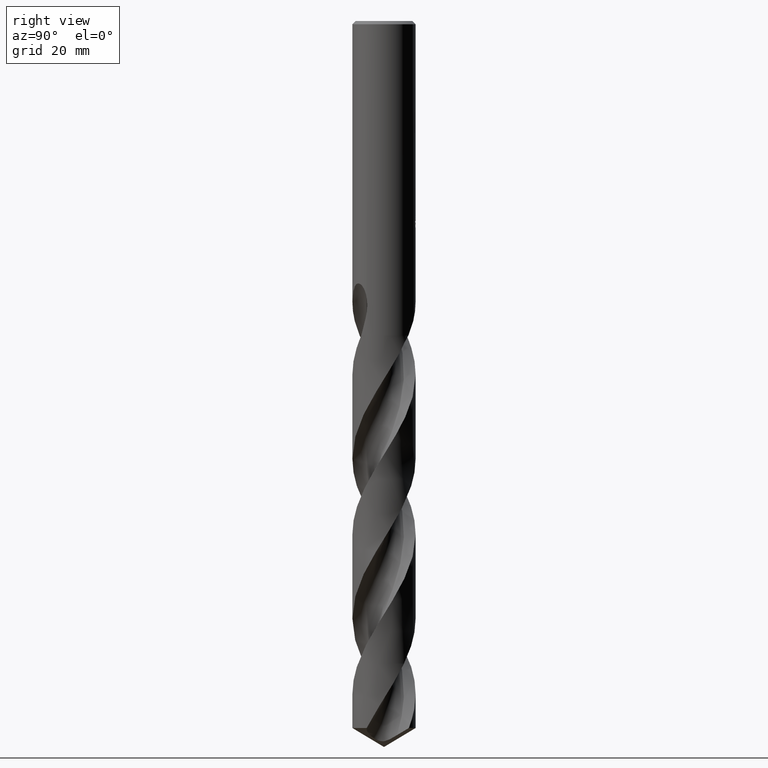
[diagram: clean part render]
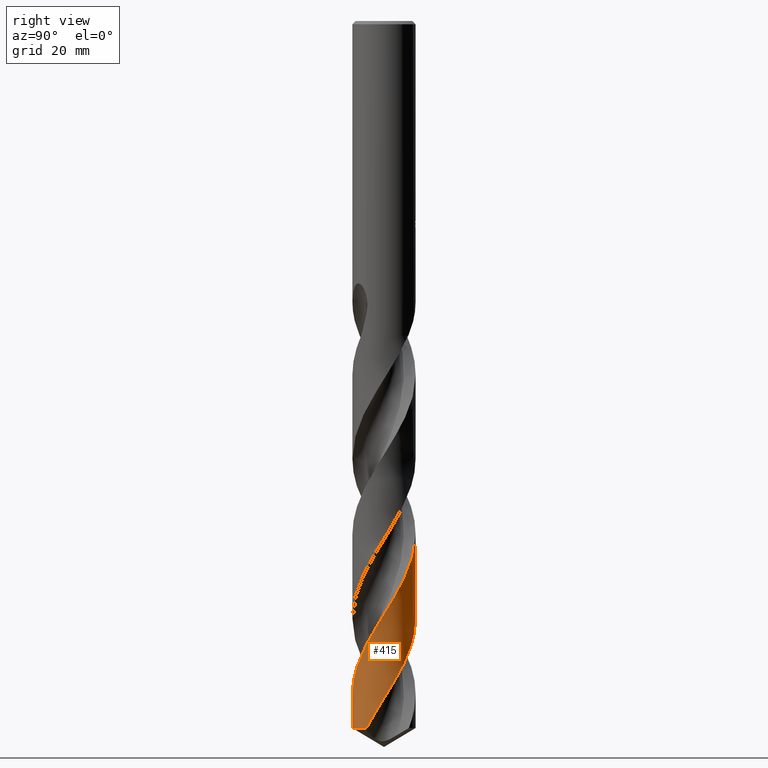
[diagram: same view with one face highlighted and labeled with its STEP entity id]
A machine part, right view. The second image highlights one B-rep face of the part: STEP entity #415.
In plain terms, the highlighted conical surface has half-angle 0 deg.
Its self-contained STEP definition (entity closure, byte-faithful):
#337=VERTEX_POINT('',#821);
#369=VERTEX_POINT('',#858);
#415=ADVANCED_FACE('',(#906),#907,.T.);
#449=EDGE_CURVE('',#337,#715,#943,.T.);
#493=VERTEX_POINT('',#991);
#545=EDGE_CURVE('',#369,#583,#1049,.T.);
#577=EDGE_CURVE('',#493,#583,#1083,.T.);
#583=VERTEX_POINT('',#1090);
#591=EDGE_CURVE('',#493,#337,#1099,.T.);
#647=EDGE_CURVE('',#369,#715,#1157,.T.);
#715=VERTEX_POINT('',#1232);
#821=CARTESIAN_POINT('',(9.48615845429157E-016,-7.75,-173.343330202536));
#858=CARTESIAN_POINT('',(1.99533446718282E-014,7.74995067438511,-125.870715794964));
#906=FACE_OUTER_BOUND('',#3390,.T.);
#907=CONICAL_SURFACE('',#3391,7.74995,1.03903304041214E-006);
#943=LINE('',#3473,#3474);
#991=CARTESIAN_POINT('',(6.47495186175452,-4.25881419974641,-173.343330202536));
#1049=LINE('',#5153,#5154);
#1083=B_SPLINE_CURVE_WITH_KNOTS('',3,(#5401,#5402,#5403,#5404,#5405,#5406,#5407,#5408,#5409,#5410,#5411,#5412,#5413,#5414,#5415,#5416,#5417,#5418,#5419,#5420,#5421,#5422,#5423,#5424,#5425,#5426,#5427,#5428,#5429,#5430,#5431,#5432,#5433,#5434,#5435,#5436,#5437,#5438,#5439,#5440,#5441,#5442,#5443,#5444,#5445,#5446,#5447,#5448,#5449,#5450,#5451,#5452,#5453,#5454,#5455,#5456,#5457,#5458,#5459,#5460,#5461,#5462,#5463,#5464,#5465,#5466,#5467,#5468,#5469,#5470,#5471,#5472,#5473,#5474,#5475,#5476,#5477,#5478,#5479,#5480,#5481,#5482,#5483,#5484,#5485,#5486,#5487,#5488,#5489,#5490,#5491,#5492,#5493,#5494,#5495,#5496,#5497,#5498,#5499,#5500,#5501,#5502,#5503,#5504,#5505,#5506,#5507,#5508,#5509,#5510,#5511,#5512,#5513,#5514,#5515,#5516,#5517,#5518,#5519,#5520,#5521,#5522,#5523,#5524,#5525,#5526,#5527,#5528,#5529,#5530,#5531,#5532,#5533,#5534,#5535,#5536,#5537,#5538,#5539,#5540,#5541,#5542,#5543,#5544,#5545,#5546,#5547,#5548,#5549,#5550,#5551,#5552,#5553,#5554,#5555,#5556),.UNSPECIFIED.,.F.,.F.,(4,2,2,2,2,2,2,2,2,2,2,2,2,2,2,2,2,2,2,2,2,2,2,2,2,2,2,2,2,2,2,2,2,2,2,2,2,2,2,2,2,2,2,2,2,2,2,2,2,2,2,2,2,2,2,2,2,2,2,2,2,2,2,2,2,2,2,2,2,2,2,2,2,2,2,2,2,4),(0.0,1.1501617486404,2.80915369994849,5.50388782579616,5.80979353727057,8.12454812891192,10.0139240121026,13.0717488826773,13.2063547403265,15.0405653459117,15.9799942113499,17.3232031560426,18.9228674460314,19.9335697566807,21.0443476955143,22.6654444467392,23.7077031164502,24.8163482533074,26.6677226424723,28.521030300895,30.3734369598208,32.2277344417879,34.0094092255681,34.9484483761568,35.9823404999516,37.8806321065603,40.5757320172256,42.4324495856067,43.3547657631438,45.2069697483667,46.1347979431276,47.0569327265549,48.9084562792272,49.8360162613794,50.757992505388,52.6089120996708,53.5362829279596,54.4582779590352,56.1193811663239,57.2271886989767,58.0683798326138,59.9051265686532,60.8820200651772,62.0041425151771,63.7663042008116,65.8678198132229,67.3684489423732,69.4672859609447,71.3197057606443,73.1722760131225,75.0252663442028,76.8443551673533,78.6978360115068,80.552364229866,82.4066752698263,84.261989306508,86.0722400525576,88.0200663171059,89.8516308801315,90.6575265830955,91.502819070658,93.3092794712841,94.3376741859288,95.4975702163929,97.5017553220233,99.569041881076,102.764845145946,105.13822627666,108.962500433628,110.814207149855,113.639512597213,114.357579221103,114.573251154077,114.67146020114,114.775286432849,114.940558581632,115.146537325982,115.776589814245),.UNSPECIFIED.);
#1090=CARTESIAN_POINT('',(1.92032749412519E-011,7.74997211869503,-146.509433800504));
#1099=CIRCLE('',#5576,7.75);
#1157=B_SPLINE_CURVE_WITH_KNOTS('',3,(#6278,#6279,#6280,#6281,#6282,#6283,#6284,#6285,#6286,#6287,#6288,#6289,#6290,#6291,#6292,#6293,#6294,#6295,#6296,#6297,#6298,#6299,#6300,#6301,#6302,#6303,#6304,#6305,#6306,#6307,#6308,#6309,#6310,#6311,#6312,#6313,#6314,#6315,#6316,#6317,#6318,#6319,#6320,#6321,#6322,#6323,#6324,#6325,#6326,#6327,#6328,#6329,#6330,#6331,#6332,#6333,#6334,#6335,#6336,#6337,#6338,#6339,#6340,#6341,#6342,#6343,#6344,#6345,#6346,#6347,#6348,#6349,#6350,#6351,#6352,#6353,#6354,#6355,#6356,#6357,#6358,#6359,#6360,#6361,#6362,#6363,#6364,#6365,#6366,#6367,#6368,#6369,#6370,#6371,#6372,#6373,#6374,#6375,#6376,#6377,#6378,#6379,#6380,#6381,#6382,#6383,#6384,#6385,#6386,#6387,#6388,#6389,#6390,#6391,#6392,#6393,#6394,#6395,#6396,#6397,#6398,#6399,#6400,#6401,#6402,#6403,#6404,#6405,#6406,#6407,#6408,#6409,#6410,#6411,#6412,#6413,#6414,#6415,#6416,#6417,#6418,#6419,#6420,#6421),.UNSPECIFIED.,.F.,.F.,(4,2,2,2,2,2,2,2,2,2,2,2,2,2,2,2,2,2,2,2,2,2,2,2,2,2,2,2,2,2,2,2,2,2,2,2,2,2,2,2,2,2,2,2,2,2,2,2,2,2,2,2,2,2,2,2,2,2,2,2,2,2,2,2,2,2,2,2,2,2,2,4),(0.0,0.383997192090617,1.66102720420595,1.94988560752833,2.11365483087836,2.25584687956925,2.43053814298166,2.61819787759649,2.9307990307927,4.12422246539088,4.69687971544737,5.24053823446915,5.80170561301284,8.75513494610381,9.60137819287331,14.1250972809934,15.095425348657,17.5027108230239,18.7922545519295,21.374548804737,21.9309378672209,23.9653103754702,25.2766140359129,25.3946373262995,27.2495654811642,29.8751683650541,32.4679487801065,32.5527596096386,34.3856972210193,37.0115046606373,39.6011613798769,39.7707817072006,41.6021326633398,44.2278451500992,46.8184963658262,46.9881078940358,48.8569861048277,51.4816106290806,54.0734466405104,54.1582400704268,55.9873694766841,58.6127754288833,61.2026843748215,61.3722624017624,63.2112001801792,65.8361525696633,68.4262570282235,68.5958438717279,70.4774207688061,73.1012287801885,74.4040643949445,75.0578754467473,76.3461838434802,78.9230833191479,80.0709954139923,82.6541999241326,83.3329416423586,85.7187148012781,87.0128302433058,89.5206852458126,90.8056752056117,93.165930184353,94.200031059012,96.1484724853265,97.8680639720405,99.3694536510862,102.010085263834,103.986806566812,105.468957174278,107.697441585722,108.812314221946,109.929729447468),.UNSPECIFIED.);
#1232=CARTESIAN_POINT('',(3.33369089229345E-014,-7.74999136563885,-165.033333495974));
#3390=EDGE_LOOP('',(#7361,#7362,#7363,#7364,#7365));
#3391=AXIS2_PLACEMENT_3D('',#7366,#7367,#7368);
#3473=CARTESIAN_POINT('',(9.48609722397388E-016,-7.74995,-125.221665101268));
#3474=VECTOR('',#7394,1.0);
#5153=CARTESIAN_POINT('',(-9.49517879963759E-016,7.74995,-125.221665101268));
#5154=VECTOR('',#7523,1.0);
#5401=CARTESIAN_POINT('',(6.47495186175454,-4.25881419974638,-173.343330202536));
#5402=CARTESIAN_POINT('',(6.58637055147566,-4.08941651325888,-173.01794415104));
#5403=CARTESIAN_POINT('',(6.69101867520992,-3.91583316055126,-172.692871410264));
#5404=CARTESIAN_POINT('',(6.9295536486214,-3.48267781305885,-171.897708593896));
#5405=CARTESIAN_POINT('',(7.05571970174375,-3.21938203034308,-171.426821860421));
#5406=CARTESIAN_POINT('',(7.34713882696126,-2.51129728777996,-170.19448635762));
#5407=CARTESIAN_POINT('',(7.48686664232974,-2.05755290324145,-169.436118915224));
#5408=CARTESIAN_POINT('',(7.59533143107697,-1.54151023830373,-168.586648163164));
#5409=CARTESIAN_POINT('',(7.60583484102229,-1.48882131182871,-168.500040295319));
#5410=CARTESIAN_POINT('',(7.69117579917529,-1.03620954390061,-167.758081277244));
#5411=CARTESIAN_POINT('',(7.73501952676843,-0.630813705903134,-167.105743395258));
#5412=CARTESIAN_POINT('',(7.75636079346822,0.108986722262141,-165.916423294932));
#5413=CARTESIAN_POINT('',(7.74453018881823,0.441476203543482,-165.380841129152));
#5414=CARTESIAN_POINT('',(7.65792293650054,1.30668169846025,-163.981329515195));
#5415=CARTESIAN_POINT('',(7.54893360970452,1.83412327809144,-163.122787836531));
#5416=CARTESIAN_POINT('',(7.37933300175509,2.36818992380574,-162.219405753823));
#5417=CARTESIAN_POINT('',(7.37207237626188,2.39069666602162,-162.181281083989));
#5418=CARTESIAN_POINT('',(7.26415590817646,2.72003651405738,-161.622737030754));
#5419=CARTESIAN_POINT('',(7.14443608780519,3.02060439692642,-161.103938282756));
#5420=CARTESIAN_POINT('',(6.93524374543517,3.46296883338494,-160.317818629482));
#5421=CARTESIAN_POINT('',(6.85962797407509,3.61043194570941,-160.051725913283));
#5422=CARTESIAN_POINT('',(6.66463336509124,3.96245029002636,-159.404589745532));
#5423=CARTESIAN_POINT('',(6.54054699782311,4.16406765334059,-159.023070392885));
#5424=CARTESIAN_POINT('',(6.24903395090553,4.592513252296,-158.18890294616));
#5425=CARTESIAN_POINT('',(6.07789386133982,4.8167434538702,-157.736507866411));
#5426=CARTESIAN_POINT('',(5.77907594999428,5.16684421929836,-156.997018294214));
#5427=CARTESIAN_POINT('',(5.65880166605967,5.29829070849358,-156.710888943524));
#5428=CARTESIAN_POINT('',(5.39722463075258,5.56511126216278,-156.109631841495));
#5429=CARTESIAN_POINT('',(5.25512824587016,5.69948108841107,-155.794305113647));
#5430=CARTESIAN_POINT('',(4.89343484076975,6.01647312919433,-155.020122272475));
#5431=CARTESIAN_POINT('',(4.66844445866285,6.19269628859065,-154.561794421069));
#5432=CARTESIAN_POINT('',(4.28338195153921,6.46131420126418,-153.807455902481));
#5433=CARTESIAN_POINT('',(4.12909880426563,6.56097514551943,-153.512466722023));
#5434=CARTESIAN_POINT('',(3.80391931545995,6.75503262639661,-152.902972437837));
#5435=CARTESIAN_POINT('',(3.63269570304785,6.84863394647635,-152.58831394311));
#5436=CARTESIAN_POINT('',(3.16630253926183,7.08116715423931,-151.749513489784));
#5437=CARTESIAN_POINT('',(2.86556130721303,7.20813277912464,-151.226436695178));
#5438=CARTESIAN_POINT('',(2.24918623564103,7.42361008089499,-150.177132994477));
#5439=CARTESIAN_POINT('',(1.93452795482846,7.51173016350174,-149.651264618614));
#5440=CARTESIAN_POINT('',(1.29672446073762,7.64767113749135,-148.601715349767));
#5441=CARTESIAN_POINT('',(0.973773649506558,7.69547586384052,-148.078626042575));
#5442=CARTESIAN_POINT('',(0.323072719162144,7.75012312932829,-147.029305140463));
#5443=CARTESIAN_POINT('',(-0.00363155807719434,7.75683052560853,-146.503437538197));
#5444=CARTESIAN_POINT('',(-0.642554061306113,7.72964244658888,-145.474185710518));
#5445=CARTESIAN_POINT('',(-0.954699930922243,7.69733743416655,-144.97123070274));
#5446=CARTESIAN_POINT('',(-1.42733174838758,7.61919236972343,-144.201445585904));
#5447=CARTESIAN_POINT('',(-1.58943961073307,7.5870263885231,-143.935893273849));
#5448=CARTESIAN_POINT('',(-1.92737466236012,7.50868105119226,-143.377381277037));
#5449=CARTESIAN_POINT('',(-2.10295568397869,7.46141247621664,-143.084179178445));
#5450=CARTESIAN_POINT('',(-2.5960589235721,7.3098573717458,-142.25392573375));
#5451=CARTESIAN_POINT('',(-2.90875718087396,7.19116616830072,-141.718088280208));
#5452=CARTESIAN_POINT('',(-3.64486108561481,6.8558156230126,-140.418041655962));
#5453=CARTESIAN_POINT('',(-4.05770165468487,6.61984317659755,-139.654006448379));
#5454=CARTESIAN_POINT('',(-4.71430359351031,6.15988745459877,-138.365816180883));
#5455=CARTESIAN_POINT('',(-4.96979630410829,5.95564162247746,-137.841754111065));
#5456=CARTESIAN_POINT('',(-5.33151416332845,5.62700453234154,-137.054843236126));
#5457=CARTESIAN_POINT('',(-5.44811752966135,5.51418824721771,-136.793240469503));
#5458=CARTESIAN_POINT('',(-5.78818828633384,5.16381865277999,-136.007370584055));
#5459=CARTESIAN_POINT('',(-6.00034536714344,4.91571210110844,-135.484301967666));
#5460=CARTESIAN_POINT('',(-6.2945140312684,4.52412311626528,-134.697263627091));
#5461=CARTESIAN_POINT('',(-6.38846157376295,4.39045256687295,-134.434717786656));
#5462=CARTESIAN_POINT('',(-6.56709993012087,4.11841949441039,-133.910691953261));
#5463=CARTESIAN_POINT('',(-6.65183221829863,3.98011762451097,-133.64914937612));
#5464=CARTESIAN_POINT('',(-6.89368892565932,3.55599796148629,-132.863267611489));
#5465=CARTESIAN_POINT('',(-7.03720367738495,3.2628306604533,-132.340222555821));
#5466=CARTESIAN_POINT('',(-7.22433555425948,2.81025287703783,-131.553207987298));
#5467=CARTESIAN_POINT('',(-7.28195443568547,2.657367934578,-131.290657418728));
#5468=CARTESIAN_POINT('',(-7.38706460659207,2.34934310113864,-130.766593896555));
#5469=CARTESIAN_POINT('',(-7.43460721118481,2.19425962032107,-130.505015000758));
#5470=CARTESIAN_POINT('',(-7.56296651085851,1.72323279357707,-129.719140175041));
#5471=CARTESIAN_POINT('',(-7.62877975731761,1.40355253150128,-129.196129540352));
#5472=CARTESIAN_POINT('',(-7.6970566970085,0.91859533122445,-128.409153240047));
#5473=CARTESIAN_POINT('',(-7.71470384247948,0.756151776591949,-128.146596070199));
#5474=CARTESIAN_POINT('',(-7.73962895622489,0.431564600850418,-127.622465942803));
#5475=CARTESIAN_POINT('',(-7.74696763921188,0.269471073884917,-127.360825249068));
#5476=CARTESIAN_POINT('',(-7.75325442131365,-0.185377362388049,-126.628612414012));
#5477=CARTESIAN_POINT('',(-7.74073653270698,-0.478051937257921,-126.158901194503));
#5478=CARTESIAN_POINT('',(-7.69225577559709,-0.963892036960388,-125.374461661482));
#5479=CARTESIAN_POINT('',(-7.66553112951314,-1.15732517890759,-125.060865652606));
#5480=CARTESIAN_POINT('',(-7.60577922187083,-1.49525012713605,-124.508395768215));
#5481=CARTESIAN_POINT('',(-7.57583568540318,-1.64023016800478,-124.269662518529));
#5482=CARTESIAN_POINT('',(-7.46728697892488,-2.09902031541962,-123.510571246649));
#5483=CARTESIAN_POINT('',(-7.37316488628321,-2.40893974881747,-122.991463961874));
#5484=CARTESIAN_POINT('',(-7.19955798414007,-2.87362210968368,-122.194409812073));
#5485=CARTESIAN_POINT('',(-7.13396049642634,-3.03279789166859,-121.917834157021));
#5486=CARTESIAN_POINT('',(-6.98186121456688,-3.36961565849855,-121.322913932466));
#5487=CARTESIAN_POINT('',(-6.89371233801562,-3.54647109572545,-121.004292191814));
#5488=CARTESIAN_POINT('',(-6.64984694841565,-3.99218360699864,-120.186671315658));
#5489=CARTESIAN_POINT('',(-6.48456418125433,-4.25542017538107,-119.688492281749));
#5490=CARTESIAN_POINT('',(-6.0882825079587,-4.80954615993437,-118.593721983879));
#5491=CARTESIAN_POINT('',(-5.85153023621212,-5.09492468415661,-117.997083077584));
#5492=CARTESIAN_POINT('',(-5.4124718896437,-5.55307338610056,-116.976320370143));
#5493=CARTESIAN_POINT('',(-5.21984859729719,-5.73452357686827,-116.551917937168));
#5494=CARTESIAN_POINT('',(-4.7362548705456,-6.14543582604316,-115.532268506121));
#5495=CARTESIAN_POINT('',(-4.43764068142496,-6.36439134183715,-114.936675548792));
#5496=CARTESIAN_POINT('',(-3.84863978053588,-6.73467885658813,-113.817279192465));
#5497=CARTESIAN_POINT('',(-3.56173107508822,-6.89072887121626,-113.294030679173));
#5498=CARTESIAN_POINT('',(-2.96968698131322,-7.16582390724244,-112.244771076155));
#5499=CARTESIAN_POINT('',(-2.66546305062338,-7.28444427267586,-111.71904736806));
#5500=CARTESIAN_POINT('',(-2.04410767674183,-7.48261162701314,-110.669614340553));
#5501=CARTESIAN_POINT('',(-1.72734197609243,-7.56202981599235,-110.146384631733));
#5502=CARTESIAN_POINT('',(-1.09129471256064,-7.67940116197729,-109.106813405825));
#5503=CARTESIAN_POINT('',(-0.77312106853009,-7.71791074936911,-108.59079364156));
#5504=CARTESIAN_POINT('',(-0.128161995401566,-7.75572879058181,-107.551100595828));
#5505=CARTESIAN_POINT('',(0.198353887150533,-7.75426296919263,-107.02793850716));
#5506=CARTESIAN_POINT('',(0.849750939554076,-7.71012096575465,-105.978658414196));
#5507=CARTESIAN_POINT('',(1.17360627717186,-7.66749049516665,-105.452855914161));
#5508=CARTESIAN_POINT('',(1.81358469804429,-7.54179228828176,-104.403346895963));
#5509=CARTESIAN_POINT('',(2.12940121505897,-7.45879016905061,-103.880174545193));
#5510=CARTESIAN_POINT('',(2.74914031505581,-7.25329071618229,-102.830881032764));
#5511=CARTESIAN_POINT('',(3.05207701895357,-7.13109593980598,-102.305080344113));
#5512=CARTESIAN_POINT('',(3.63322186669366,-6.85290319803179,-101.268253546169));
#5513=CARTESIAN_POINT('',(3.91161084511255,-6.69791462357984,-100.757658194848));
#5514=CARTESIAN_POINT('',(4.4683686964009,-6.34132686245998,-99.6951127118643));
#5515=CARTESIAN_POINT('',(4.74417171577725,-6.13769269975554,-99.1433085041705));
#5516=CARTESIAN_POINT('',(5.25114704758172,-5.70879225381416,-98.0747103581818));
#5517=CARTESIAN_POINT('',(5.48374974415405,-5.48575540002408,-97.5583450852169));
#5518=CARTESIAN_POINT('',(5.79787700921221,-5.14450919778015,-96.8129212950948));
#5519=CARTESIAN_POINT('',(5.89092115727871,-5.03769245875409,-96.5852257678022));
#5520=CARTESIAN_POINT('',(6.07534203851974,-4.81388778154743,-96.118319580463));
#5521=CARTESIAN_POINT('',(6.16638274851346,-4.69670272168665,-95.8790108774123));
#5522=CARTESIAN_POINT('',(6.44142982240008,-4.3208659568642,-95.1291450507608));
#5523=CARTESIAN_POINT('',(6.61303139659804,-4.05339373925649,-94.6197536476958));
#5524=CARTESIAN_POINT('',(6.85596460938293,-3.61796712869717,-93.8186197691092));
#5525=CARTESIAN_POINT('',(6.93847700669167,-3.45707696138398,-93.5281845276468));
#5526=CARTESIAN_POINT('',(7.10182705530487,-3.10914217698539,-92.9094507274812));
#5527=CARTESIAN_POINT('',(7.18112415000123,-2.92134131335388,-92.580856244738));
#5528=CARTESIAN_POINT('',(7.37710510645476,-2.40075977678652,-91.6859948334874));
#5529=CARTESIAN_POINT('',(7.47862818668977,-2.06289076780314,-91.1211437959292));
#5530=CARTESIAN_POINT('',(7.63746258624769,-1.36473072156736,-89.9699000321367));
#5531=CARTESIAN_POINT('',(7.69304002344339,-1.00519659571739,-89.3838780846456));
#5532=CARTESIAN_POINT('',(7.76981496270049,-0.0829375073991606,-87.8956882130185));
#5533=CARTESIAN_POINT('',(7.7553824901071,0.480350787013475,-86.9973752803381));
#5534=CARTESIAN_POINT('',(7.62437816382637,1.45051665783666,-85.4220095162018));
#5535=CARTESIAN_POINT('',(7.53539488096059,1.85809616961234,-84.7474037424304));
#5536=CARTESIAN_POINT('',(7.21854842306584,2.8990330592962,-82.9954044501567));
#5537=CARTESIAN_POINT('',(6.98378670356854,3.37499358059906,-82.1671752287308));
#5538=CARTESIAN_POINT('',(6.75916185218085,3.79458272886715,-81.4153490547645));
#5539=CARTESIAN_POINT('',(6.6828257180928,3.92728422001273,-81.1696403035232));
#5540=CARTESIAN_POINT('',(6.48365298904383,4.25160062842789,-80.5431399818249));
#5541=CARTESIAN_POINT('',(6.36029498222,4.43284490932477,-80.1655693687544));
#5542=CARTESIAN_POINT('',(6.20693288431382,4.6408748401331,-79.7051930027587));
#5543=CARTESIAN_POINT('',(6.17564633189286,4.6824193494118,-79.6117305702537));
#5544=CARTESIAN_POINT('',(6.13470895189463,4.7356705192637,-79.4898895672456));
#5545=CARTESIAN_POINT('',(6.09982877163154,4.78117999719772,-79.3843363260077));
#5546=CARTESIAN_POINT('',(6.0258820888006,4.87350986923762,-79.1806013429204));
#5547=CARTESIAN_POINT('',(6.00216798735707,4.90269556808169,-79.1172408061874));
#5548=CARTESIAN_POINT('',(5.95210963973536,4.96336631142381,-78.987600333297));
#5549=CARTESIAN_POINT('',(5.9257172878348,4.99485736899541,-78.9214248698551));
#5550=CARTESIAN_POINT('',(5.85546970419338,5.07729019393575,-78.7509545777781));
#5551=CARTESIAN_POINT('',(5.81061366659432,5.12859095654433,-78.6476151360479));
#5552=CARTESIAN_POINT('',(5.70767370920154,5.24316075607085,-78.4214518884787));
#5553=CARTESIAN_POINT('',(5.64797963816862,5.30748660246747,-78.2977264946054));
#5554=CARTESIAN_POINT('',(5.39445564010889,5.57106558177221,-77.8018257380908));
#5555=CARTESIAN_POINT('',(5.17991296319832,5.77301321284531,-77.4473273342849));
#5556=CARTESIAN_POINT('',(4.93837468083043,5.9727217918012,-77.105));
#5576=AXIS2_PLACEMENT_3D('',#7590,#7591,#7592);
#6278=CARTESIAN_POINT('',(5.38677868890562,-5.57167528193059,-77.105));
#6279=CARTESIAN_POINT('',(5.34057767328729,-5.61634327227969,-77.2156977740816));
#6280=CARTESIAN_POINT('',(5.29367414692884,-5.66058094054133,-77.326417476486));
#6281=CARTESIAN_POINT('',(5.0871106719991,-5.85053979227315,-77.8048725866299));
#6282=CARTESIAN_POINT('',(4.9235794319864,-5.98918650146416,-78.1599023387194));
#6283=CARTESIAN_POINT('',(4.70458894056777,-6.15876835503834,-78.6036640416697));
#6284=CARTESIAN_POINT('',(4.66374161842101,-6.18976260195516,-78.6852736541667));
#6285=CARTESIAN_POINT('',(4.59873444936305,-6.23806682853823,-78.813473299464));
#6286=CARTESIAN_POINT('',(4.57507538712123,-6.25543994510462,-78.8597930030647));
#6287=CARTESIAN_POINT('',(4.53059282146001,-6.28771506821165,-78.9463099375919));
#6288=CARTESIAN_POINT('',(4.50982232963995,-6.30262950271295,-78.9864788637935));
#6289=CARTESIAN_POINT('',(4.46330409648163,-6.33568370920629,-79.0759856487606));
#6290=CARTESIAN_POINT('',(4.43752587071589,-6.35376584352799,-79.1252781738601));
#6291=CARTESIAN_POINT('',(4.38376975231854,-6.39098534303756,-79.2275325828944));
#6292=CARTESIAN_POINT('',(4.35579511887289,-6.41008439943505,-79.2804486006065));
#6293=CARTESIAN_POINT('',(4.28086724598841,-6.46052231198763,-79.4215656879505));
#6294=CARTESIAN_POINT('',(4.23315553898157,-6.49189618738228,-79.5107678083789));
#6295=CARTESIAN_POINT('',(3.99904536274649,-6.64207887522941,-79.948056271576));
#6296=CARTESIAN_POINT('',(3.81034741823809,-6.75197322789387,-80.2975019656733));
#6297=CARTESIAN_POINT('',(3.52698757453118,-6.9016059400304,-80.814190189916));
#6298=CARTESIAN_POINT('',(3.43423141496912,-6.94822422412843,-80.9820352946796));
#6299=CARTESIAN_POINT('',(3.25183589545442,-7.03535872668118,-81.3089776487654));
#6300=CARTESIAN_POINT('',(3.16215001905096,-7.07612486370595,-81.4683159324313));
#6301=CARTESIAN_POINT('',(2.97824674269915,-7.15551697931135,-81.7917953714153));
#6302=CARTESIAN_POINT('',(2.8841238699891,-7.19397143093675,-81.9555992127279));
#6303=CARTESIAN_POINT('',(2.28915639883875,-7.42347443313328,-82.982359667223));
#6304=CARTESIAN_POINT('',(1.77044098175101,-7.56400045722614,-83.8389125189703));
#6305=CARTESIAN_POINT('',(1.08951418615112,-7.67447973145564,-84.9490171439718));
#6306=CARTESIAN_POINT('',(0.937218157894945,-7.69456149700587,-85.1964206677019));
#6307=CARTESIAN_POINT('',(-0.0320795287003853,-7.7931847956369,-86.7654390632958));
#6308=CARTESIAN_POINT('',(-0.857045719126094,-7.7460672590014,-88.0766498326176));
#6309=CARTESIAN_POINT('',(-1.83168224185194,-7.53240646711174,-89.6812206779914));
#6310=CARTESIAN_POINT('',(-2.00244169976334,-7.48881923219327,-89.964520016385));
#6311=CARTESIAN_POINT('',(-2.59104211050775,-7.31701122870521,-90.951148389898));
#6312=CARTESIAN_POINT('',(-2.99954732354973,-7.15926425847037,-91.653348507551));
#6313=CARTESIAN_POINT('',(-3.60322952954801,-6.86533282058539,-92.7330520650981));
#6314=CARTESIAN_POINT('',(-3.80901746922122,-6.75332649905768,-93.1093474174393));
#6315=CARTESIAN_POINT('',(-4.41064962353513,-6.38961984957023,-94.2403306078169));
#6316=CARTESIAN_POINT('',(-4.78913386420351,-6.11109022612647,-94.9932687954195));
#6317=CARTESIAN_POINT('',(-5.21578595761319,-5.73297851187472,-95.909996185799));
#6318=CARTESIAN_POINT('',(-5.29009149247774,-5.66448561799926,-96.0724564658526));
#6319=CARTESIAN_POINT('',(-5.62973725447811,-5.33889707437335,-96.8292260722658));
#6320=CARTESIAN_POINT('',(-5.87782568485875,-5.06447863393679,-97.4231112816884));
#6321=CARTESIAN_POINT('',(-6.25206971620384,-4.58580748437465,-98.4004273252707));
#6322=CARTESIAN_POINT('',(-6.39004144056957,-4.39151545947394,-98.7831963270473));
#6323=CARTESIAN_POINT('',(-6.53045350068199,-4.17312145050654,-99.2006828939788));
#6324=CARTESIAN_POINT('',(-6.54197214892681,-4.15504108860287,-99.2351556769135));
#6325=CARTESIAN_POINT('',(-6.73326398142974,-3.85201078390865,-99.8114544554586));
#6326=CARTESIAN_POINT('',(-6.89432259978749,-3.55571488259254,-100.353091076185));
#6327=CARTESIAN_POINT('',(-7.23552724909011,-2.81706081517445,-101.662014470371));
#6328=CARTESIAN_POINT('',(-7.39508877780319,-2.36670755580499,-102.426820004527));
#6329=CARTESIAN_POINT('',(-7.62795025166792,-1.44823864558066,-103.951369438267));
#6330=CARTESIAN_POINT('',(-7.70185172095076,-0.98219551316084,-104.707232503111));
#6331=CARTESIAN_POINT('',(-7.73400114688769,-0.496860977113459,-105.489354561141));
#6332=CARTESIAN_POINT('',(-7.73497356785213,-0.481486100368724,-105.514126915979));
#6333=CARTESIAN_POINT('',(-7.75592586050841,-0.133754796251242,-106.074332940014));
#6334=CARTESIAN_POINT('',(-7.75451049793178,0.199503430148771,-106.609594638113));
#6335=CARTESIAN_POINT('',(-7.69896743813081,1.00735064661931,-107.912237168293));
#6336=CARTESIAN_POINT('',(-7.62241860048672,1.47903774557382,-108.677111085622));
#6337=CARTESIAN_POINT('',(-7.38526096195854,2.39594361481125,-110.200900019718));
#6338=CARTESIAN_POINT('',(-7.22628378008656,2.83965614532764,-110.955954516959));
#6339=CARTESIAN_POINT('',(-7.01501897945974,3.29423230604468,-111.761995518979));
#6340=CARTESIAN_POINT('',(-7.00186616647792,3.32209703204875,-111.81154081147));
#6341=CARTESIAN_POINT('',(-6.84474541036794,3.64988473081597,-112.396106485294));
#6342=CARTESIAN_POINT('',(-6.68179268831419,3.94027966013901,-112.930950181695));
#6343=CARTESIAN_POINT('',(-6.24108267090472,4.61929142735143,-114.233208905885));
#6344=CARTESIAN_POINT('',(-5.94510150551319,4.99446728106928,-114.998131124016));
#6345=CARTESIAN_POINT('',(-5.29236541527481,5.68100311855559,-116.522297912719));
#6346=CARTESIAN_POINT('',(-4.93774308716319,5.99181329992676,-117.277677193822));
#6347=CARTESIAN_POINT('',(-4.53210955213737,6.28669568638821,-118.084061155668));
#6348=CARTESIAN_POINT('',(-4.50707816741276,6.30466547571751,-118.133607580167));
#6349=CARTESIAN_POINT('',(-4.20494834474366,6.51884268660042,-118.729180642012));
#6350=CARTESIAN_POINT('',(-3.91538070318482,6.69676491701917,-119.274997593218));
#6351=CARTESIAN_POINT('',(-3.1934157135661,7.07750156579862,-120.587987285733));
#6352=CARTESIAN_POINT('',(-2.75213247003873,7.26048530082167,-121.352663193575));
#6353=CARTESIAN_POINT('',(-1.84730580695319,7.5412680705027,-122.876985965327));
#6354=CARTESIAN_POINT('',(-1.38586072207604,7.63955860531278,-123.632744013231));
#6355=CARTESIAN_POINT('',(-0.902959575289306,7.69718217084979,-124.414760637214));
#6356=CARTESIAN_POINT('',(-0.887656971066593,7.69896193310948,-124.439533844045));
#6357=CARTESIAN_POINT('',(-0.542132994799078,7.73810411140071,-124.99874114806));
#6358=CARTESIAN_POINT('',(-0.209892412227326,7.75422899257855,-125.533006762844));
#6359=CARTESIAN_POINT('',(0.599152894695329,7.74145940784957,-126.83469564634));
#6360=CARTESIAN_POINT('',(1.07425026421619,7.6899373544763,-127.599622805641));
#6361=CARTESIAN_POINT('',(2.00257622172062,7.50151690868872,-129.123676956593));
#6362=CARTESIAN_POINT('',(2.45420618112061,7.36614834027173,-129.8789422234));
#6363=CARTESIAN_POINT('',(2.91943569371302,7.17911259823617,-130.685204867025));
#6364=CARTESIAN_POINT('',(2.94795477451641,7.16744904747224,-130.734747695156));
#6365=CARTESIAN_POINT('',(3.28491664127735,7.02728919177344,-131.32163666788));
#6366=CARTESIAN_POINT('',(3.58477071104886,6.87916048462421,-131.85879948862));
#6367=CARTESIAN_POINT('',(4.28709679895572,6.4737964890022,-133.163316510183));
#6368=CARTESIAN_POINT('',(4.67718553750683,6.19783302839263,-133.92817516361));
#6369=CARTESIAN_POINT('',(5.39683901762737,5.58187746466457,-135.452283265966));
#6370=CARTESIAN_POINT('',(5.7257431002945,5.24397737437561,-136.207663534844));
#6371=CARTESIAN_POINT('',(6.04140749914881,4.85430324986614,-137.014051521201));
#6372=CARTESIAN_POINT('',(6.06066114096962,4.83024345665056,-137.063601703929));
#6373=CARTESIAN_POINT('',(6.29179836884273,4.53785134914603,-137.663006134364));
#6374=CARTESIAN_POINT('',(6.4858251229939,4.2559211066937,-138.212638802098));
#6375=CARTESIAN_POINT('',(6.90429940026063,3.55244163171519,-139.529371635299));
#6376=CARTESIAN_POINT('',(7.10967179239899,3.12117157633852,-140.29398563504));
#6377=CARTESIAN_POINT('',(7.35576743643027,2.45166953437254,-141.441634557029));
#6378=CARTESIAN_POINT('',(7.42721150375055,2.22588385240894,-141.822258820642));
#6379=CARTESIAN_POINT('',(7.518828580669,1.88237371117954,-142.394085181052));
#6380=CARTESIAN_POINT('',(7.54680145235093,1.76689257292317,-142.585124796741));
#6381=CARTESIAN_POINT('',(7.62197971281008,1.4220586615916,-143.152670779686));
#6382=CARTESIAN_POINT('',(7.66144975035929,1.19121164258631,-143.528836118644));
#6383=CARTESIAN_POINT('',(7.74833834944506,0.494418244868714,-144.65854316187));
#6384=CARTESIAN_POINT('',(7.76406624331288,0.0254829795820423,-145.41038449975));
#6385=CARTESIAN_POINT('',(7.72545331646165,-0.650354259847309,-146.498923023051));
#6386=CARTESIAN_POINT('',(7.70515106247431,-0.858026675250789,-146.834226208839));
#6387=CARTESIAN_POINT('',(7.61204018228151,-1.52943440131968,-147.924794265544));
#6388=CARTESIAN_POINT('',(7.50547185538679,-1.9875652162396,-148.678388291949));
#6389=CARTESIAN_POINT('',(7.31933194166263,-2.5504343860338,-149.631677982659));
#6390=CARTESIAN_POINT('',(7.27781567603581,-2.66659517350452,-149.8299868029));
#6391=CARTESIAN_POINT('',(7.07795673246681,-3.18631144107041,-150.725708761548));
#6392=CARTESIAN_POINT('',(6.88866603883932,-3.57721120466548,-151.422174675395));
#6393=CARTESIAN_POINT('',(6.54776889274169,-4.15261434838119,-152.497696269899));
#6394=CARTESIAN_POINT('',(6.41875355138136,-4.34937529466728,-152.875566309114));
#6395=CARTESIAN_POINT('',(6.01406848420835,-4.90925801496063,-153.986910146025));
#6396=CARTESIAN_POINT('',(5.71503024636765,-5.25437004011389,-154.718872522469));
#6397=CARTESIAN_POINT('',(5.21945510775338,-5.73359010337508,-155.827451888381));
#6398=CARTESIAN_POINT('',(5.04433585421483,-5.88824357562254,-156.202743933701));
#6399=CARTESIAN_POINT('',(4.52859378524835,-6.30380788606704,-157.268355202102));
#6400=CARTESIAN_POINT('',(4.17283048986244,-6.54475307836984,-157.957313678892));
#6401=CARTESIAN_POINT('',(3.63505692618619,-6.84718630472951,-158.949454615992));
#6402=CARTESIAN_POINT('',(3.46795197297657,-6.93331768265204,-159.251525280893));
#6403=CARTESIAN_POINT('',(2.97749096366673,-7.16395127810747,-160.12342341543));
#6404=CARTESIAN_POINT('',(2.64709874616529,-7.29250127070471,-160.692592698595));
#6405=CARTESIAN_POINT('',(2.01070436866702,-7.49113223988909,-161.764832888659));
#6406=CARTESIAN_POINT('',(1.70703051424466,-7.5661097881563,-162.266740900236));
#6407=CARTESIAN_POINT('',(1.13133154810099,-7.67182281015064,-163.208374931093));
#6408=CARTESIAN_POINT('',(0.860551070791991,-7.70689634775668,-163.647119599032));
#6409=CARTESIAN_POINT('',(0.109945202707607,-7.76405773643751,-164.85798049739));
#6410=CARTESIAN_POINT('',(-0.370874916625759,-7.7559675706182,-165.627728044142));
#6411=CARTESIAN_POINT('',(-1.20480353900637,-7.66419247117764,-166.977675734357));
#6412=CARTESIAN_POINT('',(-1.5587270024172,-7.60012407262039,-167.554927558845));
#6413=CARTESIAN_POINT('',(-2.16813041062719,-7.44541598310816,-168.566017033061));
#6414=CARTESIAN_POINT('',(-2.42559486980341,-7.36555949818104,-168.99896127759));
#6415=CARTESIAN_POINT('',(-3.058366780651,-7.13252019483276,-170.083771276952));
#6416=CARTESIAN_POINT('',(-3.42690894716257,-6.96296527878579,-170.734226686016));
#6417=CARTESIAN_POINT('',(-3.95749830562189,-6.66646536273641,-171.711511955657));
#6418=CARTESIAN_POINT('',(-4.1304235082961,-6.56072499369011,-172.037231814827));
#6419=CARTESIAN_POINT('',(-4.46789235716359,-6.33574356850022,-172.689927049255));
#6420=CARTESIAN_POINT('',(-4.63233029847692,-6.2165288635223,-173.016609125226));
#6421=CARTESIAN_POINT('',(-4.79189728413982,-6.09099502694378,-173.343330202536));
#7361=ORIENTED_EDGE('',*,*,#545,.F.);
#7362=ORIENTED_EDGE('',*,*,#647,.T.);
#7363=ORIENTED_EDGE('',*,*,#449,.F.);
#7364=ORIENTED_EDGE('',*,*,#591,.F.);
#7365=ORIENTED_EDGE('',*,*,#577,.T.);
#7366=CARTESIAN_POINT('',(0.0,0.0,-125.221665101268));
#7367=DIRECTION('',(0.0,-0.0,-1.0));
#7368=DIRECTION('',(0.0,1.0,0.0));
#7394=DIRECTION('',(-1.27240646311986E-022,1.03903304041195E-006,0.99999999999946));
#7523=DIRECTION('',(-1.27240646311986E-022,1.03903304041195E-006,-0.99999999999946));
#7590=CARTESIAN_POINT('',(0.0,0.0,-173.343330202536));
#7591=DIRECTION('',(0.0,0.0,-1.0));
#7592=DIRECTION('',(0.0,1.0,0.0));